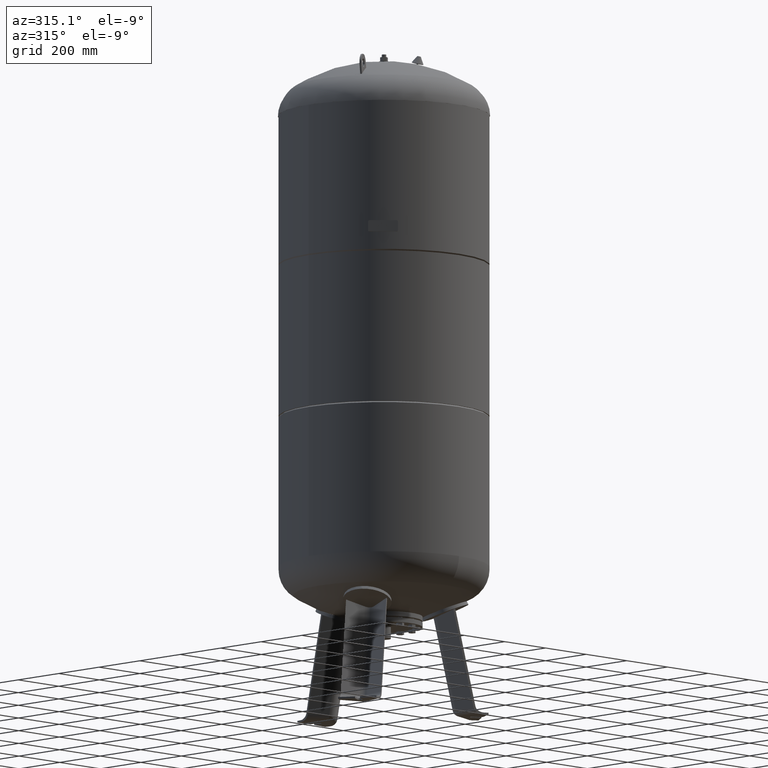
[diagram: clean part render]
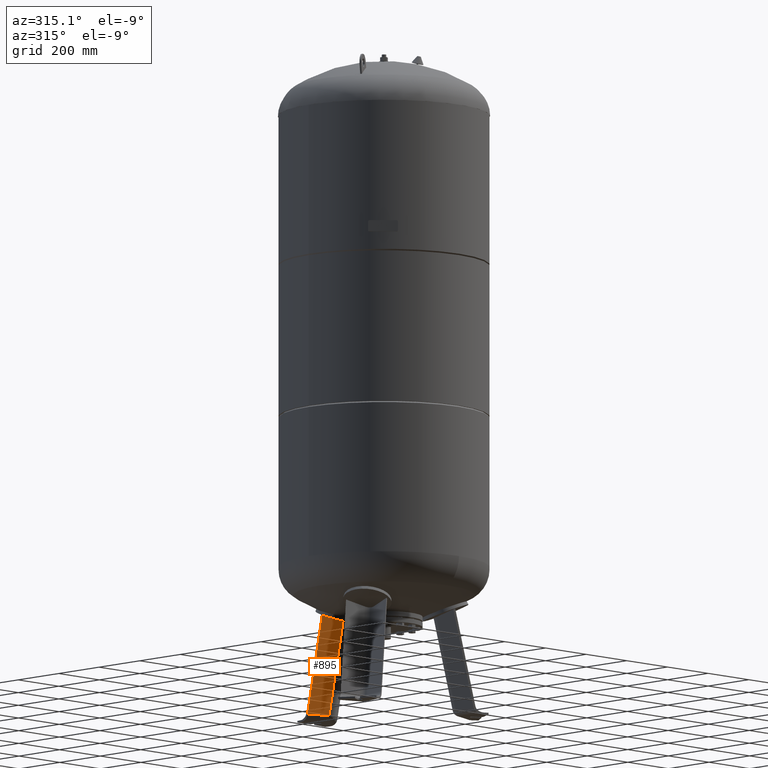
[diagram: same view with one face highlighted and labeled with its STEP entity id]
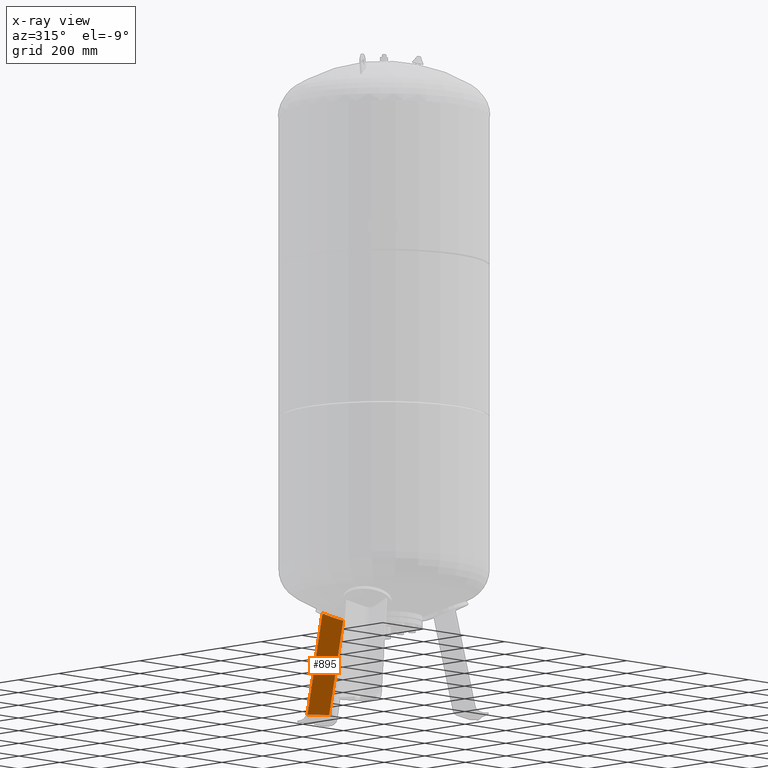
[diagram: x-ray of the same camera — body ghosted, the highlighted face saturated]
A machine part, auxiliary view. The second image highlights one B-rep face of the part: STEP entity #895.
The next image is the same camera in x-ray: the body ghosted, the highlighted face saturated — about 0% of this face is hidden behind the body in this view.
In plain terms, the highlighted planar face has unit normal (-0.6455, -0.7471, -0.1588).
Its self-contained STEP definition (entity closure, byte-faithful):
#206=CARTESIAN_POINT('',(-16.136450826554544,254.470961811045530,21.029948423057281));
#207=VERTEX_POINT('',#206);
#280=CARTESIAN_POINT('',(-73.500000000000085,229.921275981276210,369.683830982885010));
#281=VERTEX_POINT('',#280);
#289=CARTESIAN_POINT('',(-16.136450826554579,185.400257946275450,345.982061508122970));
#290=VERTEX_POINT('',#289);
#291=CARTESIAN_POINT('',(-16.136450826554579,185.400257946275450,345.982061508122970));
#292=CARTESIAN_POINT('',(-18.913416046005512,187.592932860594690,346.953435462919860));
#293=CARTESIAN_POINT('',(-21.696926014053567,189.784433593940240,347.956934926011120));
#294=CARTESIAN_POINT('',(-30.188304126259379,196.452189667655060,351.101192125903480));
#295=CARTESIAN_POINT('',(-35.915460153680861,200.925334056193630,353.334982197884360));
#296=CARTESIAN_POINT('',(-52.229069748678519,213.605103455036700,359.988747504562350));
#297=CARTESIAN_POINT('',(-62.858036945115785,221.793126320552060,364.669037481009410));
#298=CARTESIAN_POINT('',(-73.500000000000085,229.921275981276210,369.683830982885010));
#299=B_SPLINE_CURVE_WITH_KNOTS('',3,(#291,#292,#293,#294,#295,#296,#297,#298),.UNSPECIFIED.,.F.,.U.,(4,2,2,4),(5.453253502265779,6.515864870681246,8.687819827574995,12.681292855444173),.UNSPECIFIED.);
#300=EDGE_CURVE('',#290,#281,#299,.T.);
#378=CARTESIAN_POINT('',(-73.500000000000014,304.029946471096990,21.029948423057284));
#379=VERTEX_POINT('',#378);
#380=CARTESIAN_POINT('',(-16.136450826554544,254.470961811045530,21.029948423057281));
#381=DIRECTION('',(-0.756707249513243,0.653753882232529,4.686537E-017));
#382=VECTOR('',#381,75.806792138366546);
#383=LINE('',#380,#382);
#384=EDGE_CURVE('',#207,#379,#383,.T.);
#860=CARTESIAN_POINT('',(-73.500000000000014,304.029946471096990,21.029948423057284));
#861=DIRECTION('',(-1.993426E-016,-0.207911690817760,0.978147600733806));
#862=VECTOR('',#861,356.443017698216290);
#863=LINE('',#860,#862);
#864=EDGE_CURVE('',#379,#281,#863,.T.);
#879=CARTESIAN_POINT('',(-1.046481E-014,259.397581157592530,-67.735293817669458));
#880=DIRECTION('',(-0.645458033062182,-0.747104967402682,-0.158802063077709));
#881=DIRECTION('',(1.579552E-016,0.207911690817760,-0.978147600733806));
#882=AXIS2_PLACEMENT_3D('',#879,#880,#881);
#883=PLANE('',#882);
#884=CARTESIAN_POINT('',(-16.136450826554579,185.400257946275450,345.982061508122970));
#885=DIRECTION('',(1.069412E-016,0.207911690817760,-0.978147600733805));
#886=VECTOR('',#885,332.211736594034330);
#887=LINE('',#884,#886);
#888=EDGE_CURVE('',#290,#207,#887,.T.);
#889=ORIENTED_EDGE('',*,*,#888,.F.);
#890=ORIENTED_EDGE('',*,*,#300,.T.);
#891=ORIENTED_EDGE('',*,*,#864,.F.);
#892=ORIENTED_EDGE('',*,*,#384,.F.);
#893=EDGE_LOOP('',(#889,#890,#891,#892));
#894=FACE_OUTER_BOUND('',#893,.T.);
#895=ADVANCED_FACE('',(#894),#883,.T.);